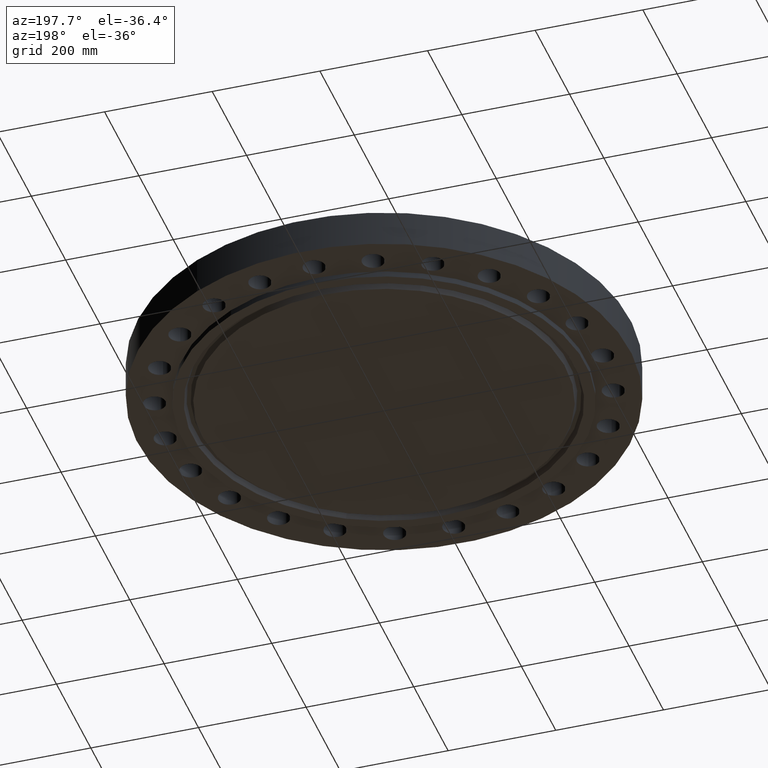
[diagram: clean part render]
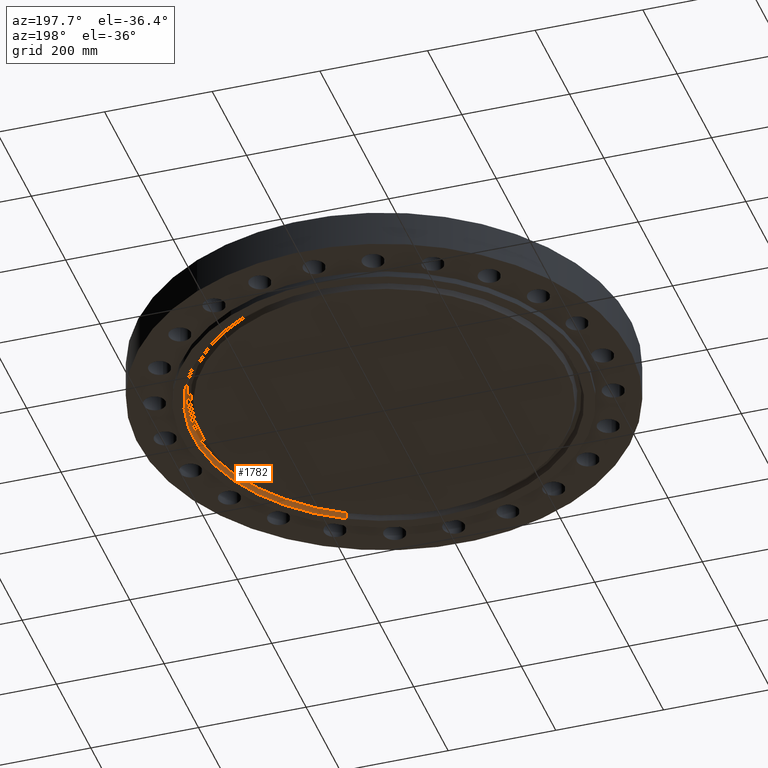
[diagram: same view with one face highlighted and labeled with its STEP entity id]
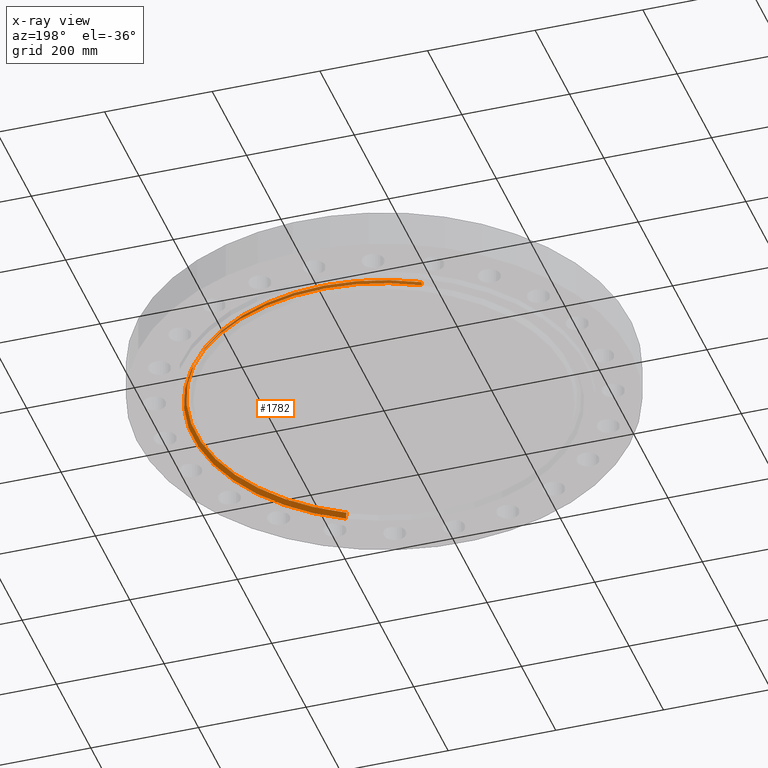
[diagram: x-ray of the same camera — body ghosted, the highlighted face saturated]
A machine part, auxiliary view. The second image highlights one B-rep face of the part: STEP entity #1782.
The next image is the same camera in x-ray: the body ghosted, the highlighted face saturated — about 0% of this face is hidden behind the body in this view.
In plain terms, the highlighted conical surface has half-angle 23 deg.
Its self-contained STEP definition (entity closure, byte-faithful):
#88=AXIS2_PLACEMENT_3D('Circle Axis2P3D',#86,#87,$) ;
#1717=AXIS2_PLACEMENT_3D('Cone Axis2P3D',#1714,#1715,#1716) ;
#1738=AXIS2_PLACEMENT_3D('Circle Axis2P3D',#1736,#1737,$) ;
#81=CARTESIAN_POINT('Vertex',(6.689496454,-12.2450411235,-0.437500000002)) ;
#83=CARTESIAN_POINT('Vertex',(-6.689496454,12.2450411235,-0.437500000002)) ;
#86=CARTESIAN_POINT('Axis2P3D Location',(-5.59482469102E-016,1.1189649382E-015,-0.437500000002)) ;
#1683=CARTESIAN_POINT('Vertex',(-6.60821271786,12.0962522425,-0.0380793044696)) ;
#1685=CARTESIAN_POINT('Vertex',(6.60821271786,-12.0962522425,-0.0380793044696)) ;
#1714=CARTESIAN_POINT('Axis2P3D Location',(0.,0.,-0.0380793044696)) ;
#1719=CARTESIAN_POINT('Line Origine',(-6.64885458593,12.170646683,-0.237789652236)) ;
#1724=CARTESIAN_POINT('Line Origine',(6.64885458593,-12.170646683,-0.237789652236)) ;
#1736=CARTESIAN_POINT('Axis2P3D Location',(0.,0.,-0.0380793044696)) ;
#87=DIRECTION('Axis2P3D Direction',(0.,0.,-0.0393700787402)) ;
#1715=DIRECTION('Axis2P3D Direction',(-0.,-0.,-0.0393700787402)) ;
#1716=DIRECTION('Axis2P3D XDirection',(-0.0188750212049,0.0345504945626,0.)) ;
#1720=DIRECTION('Vector Direction',(-0.00737505833565,0.0134999537303,-0.0362403485611)) ;
#1725=DIRECTION('Vector Direction',(0.00737505833565,-0.0134999537303,-0.0362403485611)) ;
#1737=DIRECTION('Axis2P3D Direction',(0.,0.,0.0393700787402)) ;
#1721=VECTOR('Line Direction',#1720,0.0393700787402) ;
#1726=VECTOR('Line Direction',#1725,0.0393700787402) ;
#1777=ORIENTED_EDGE('',*,*,#90,.T.) ;
#1778=ORIENTED_EDGE('',*,*,#1728,.T.) ;
#1779=ORIENTED_EDGE('',*,*,#1740,.T.) ;
#1780=ORIENTED_EDGE('',*,*,#1723,.F.) ;
#1782=ADVANCED_FACE('PartBody',(#1781),#1718,.F.) ;
#89=CIRCLE('generated circle',#88,13.9531500001) ;
#1739=CIRCLE('generated circle',#1738,13.7836059737) ;
#1718=CONICAL_SURFACE('Cone',#1717,13.7836059737,0.401425727959) ;
#90=EDGE_CURVE('',#84,#82,#89,.T.) ;
#1723=EDGE_CURVE('',#84,#1684,#1722,.F.) ;
#1728=EDGE_CURVE('',#82,#1686,#1727,.F.) ;
#1740=EDGE_CURVE('',#1686,#1684,#1739,.T.) ;
#1776=EDGE_LOOP('',(#1777,#1778,#1779,#1780)) ;
#1781=FACE_OUTER_BOUND('',#1776,.T.) ;
#1722=LINE('Line',#1719,#1721) ;
#1727=LINE('Line',#1724,#1726) ;
#82=VERTEX_POINT('',#81) ;
#84=VERTEX_POINT('',#83) ;
#1684=VERTEX_POINT('',#1683) ;
#1686=VERTEX_POINT('',#1685) ;